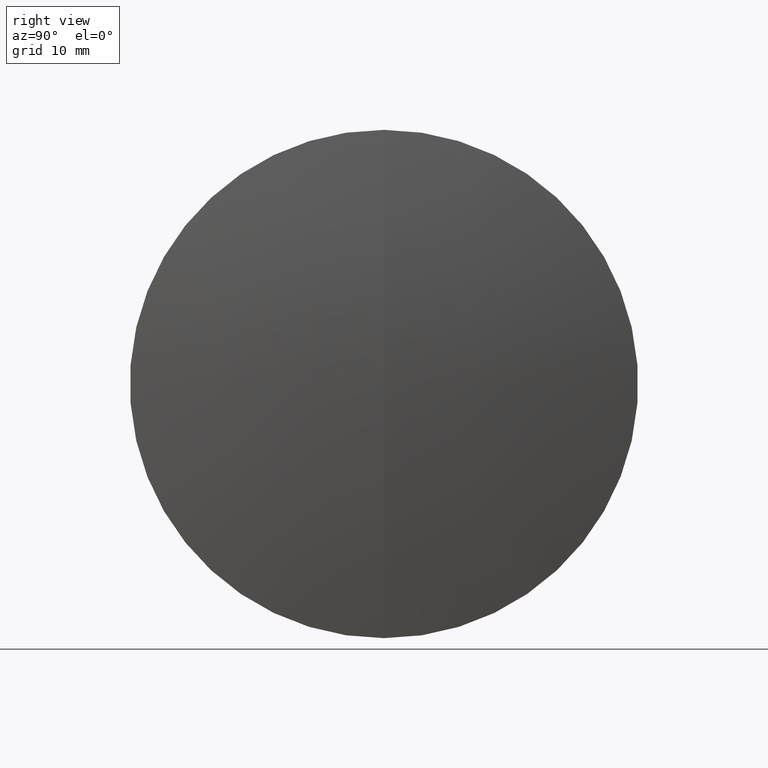
[diagram: clean part render]
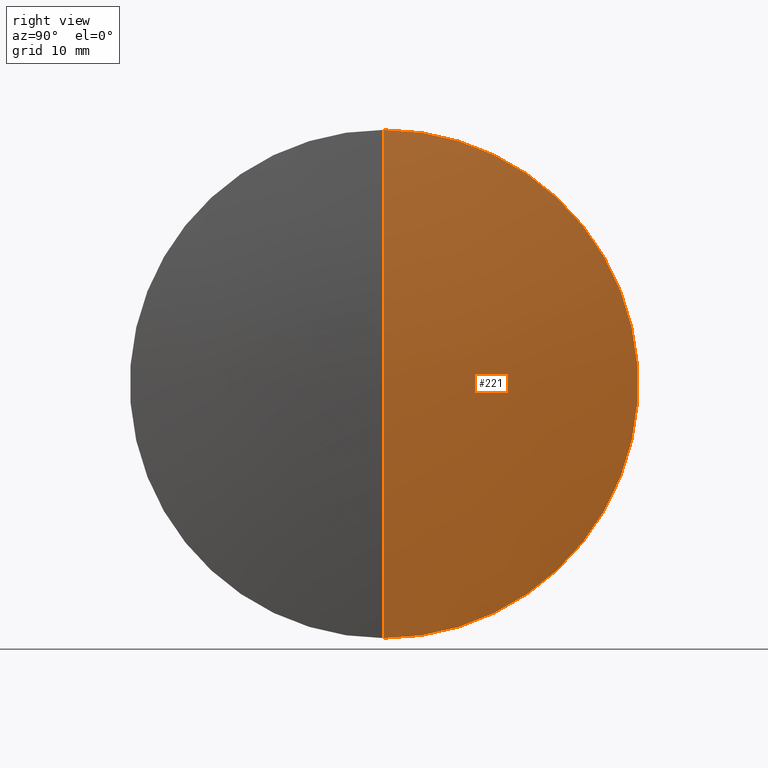
[diagram: same view with one face highlighted and labeled with its STEP entity id]
A machine part, right view. The second image highlights one B-rep face of the part: STEP entity #221.
In plain terms, the highlighted spherical surface has radius 205.63 mm.
Its self-contained STEP definition (entity closure, byte-faithful):
#5 = CIRCLE ( 'NONE', #95, 31.50000000000004300 ) ;
#8 = FACE_OUTER_BOUND ( 'NONE', #51, .T. ) ;
#11 = AXIS2_PLACEMENT_3D ( 'NONE', #163, #131, #336 ) ;
#25 = CARTESIAN_POINT ( 'NONE',  ( 324.6429958763490600, 0.0000000000000000000, 31.50000000000004300 ) ) ;
#51 = EDGE_LOOP ( 'NONE', ( #81, #248, #188 ) ) ;
#58 = VERTEX_POINT ( 'NONE', #272 ) ;
#81 = ORIENTED_EDGE ( 'NONE', *, *, #319, .F. ) ;
#87 = DIRECTION ( 'NONE',  ( -0.0000000000000000000, 1.000000000000000000, 1.224646799147353200E-016 ) ) ;
#95 = AXIS2_PLACEMENT_3D ( 'NONE', #190, #184, #154 ) ;
#114 = EDGE_CURVE ( 'NONE', #58, #172, #307, .T. ) ;
#122 = CIRCLE ( 'NONE', #290, 205.6299999999999700 ) ;
#123 = EDGE_CURVE ( 'NONE', #218, #172, #5, .T. ) ;
#131 = DIRECTION ( 'NONE',  ( 0.0000000000000000000, 1.000000000000000000, 0.0000000000000000000 ) ) ;
#154 = DIRECTION ( 'NONE',  ( 0.0000000000000000000, 0.0000000000000000000, 1.000000000000000000 ) ) ;
#163 = CARTESIAN_POINT ( 'NONE',  ( 121.4400261637978700, 0.0000000000000000000, 0.0000000000000000000 ) ) ;
#172 = VERTEX_POINT ( 'NONE', #341 ) ;
#177 = DIRECTION ( 'NONE',  ( 0.0000000000000000000, -1.000000000000000000, 0.0000000000000000000 ) ) ;
#184 = DIRECTION ( 'NONE',  ( -1.000000000000000000, -0.0000000000000000000, -0.0000000000000000000 ) ) ;
#188 = ORIENTED_EDGE ( 'NONE', *, *, #123, .F. ) ;
#190 = CARTESIAN_POINT ( 'NONE',  ( 324.6429958763490600, 0.0000000000000000000, 0.0000000000000000000 ) ) ;
#197 = CARTESIAN_POINT ( 'NONE',  ( 121.4400261637978700, 0.0000000000000000000, 0.0000000000000000000 ) ) ;
#206 = AXIS2_PLACEMENT_3D ( 'NONE', #252, #87, #261 ) ;
#218 = VERTEX_POINT ( 'NONE', #25 ) ;
#221 = ADVANCED_FACE ( 'NONE', ( #8 ), #334, .T. ) ;
#248 = ORIENTED_EDGE ( 'NONE', *, *, #114, .T. ) ;
#252 = CARTESIAN_POINT ( 'NONE',  ( 121.4400261637978700, 0.0000000000000000000, 0.0000000000000000000 ) ) ;
#261 = DIRECTION ( 'NONE',  ( 0.0000000000000000000, -1.224646799147353500E-016, 1.000000000000000000 ) ) ;
#272 = CARTESIAN_POINT ( 'NONE',  ( 327.0700261637978800, 0.0000000000000000000, 1.259120606543351200E-014 ) ) ;
#290 = AXIS2_PLACEMENT_3D ( 'NONE', #197, #177, #347 ) ;
#307 = CIRCLE ( 'NONE', #206, 205.6299999999999700 ) ;
#319 = EDGE_CURVE ( 'NONE', #58, #218, #122, .T. ) ;
#334 = SPHERICAL_SURFACE ( 'NONE', #11, 205.6299999999999700 ) ;
#336 = DIRECTION ( 'NONE',  ( 0.0000000000000000000, 0.0000000000000000000, 1.000000000000000000 ) ) ;
#341 = CARTESIAN_POINT ( 'NONE',  ( 324.6429958763490600, 3.857637417314168200E-015, -31.50000000000004300 ) ) ;
#347 = DIRECTION ( 'NONE',  ( 0.0000000000000000000, 0.0000000000000000000, -1.000000000000000000 ) ) ;